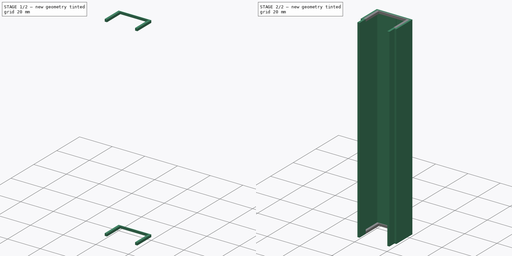
[diagram: build sequence overview — one tinted view per stage of 2, left to right]
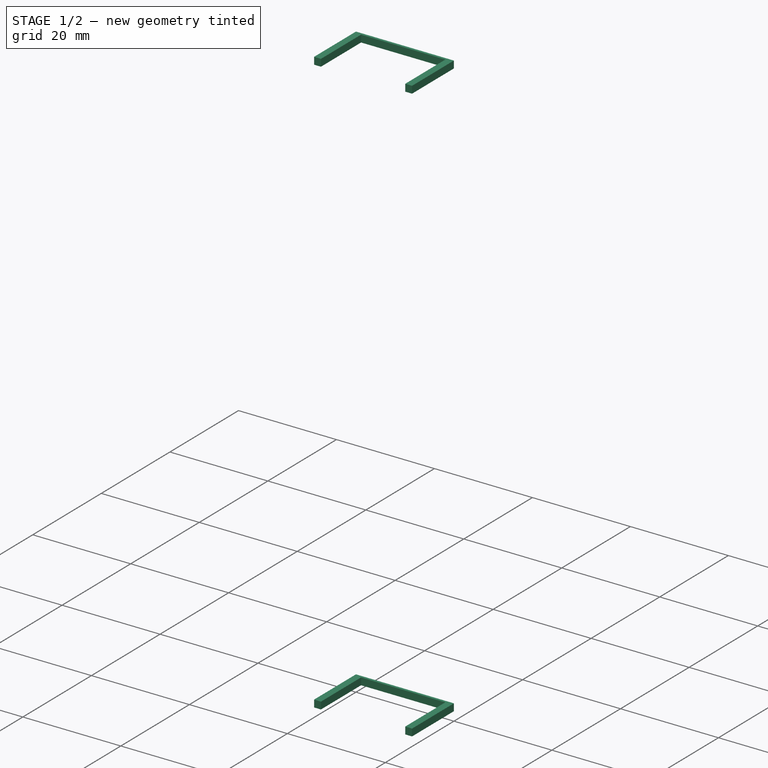
[diagram: stage 1 of 2 — iso view after this stage's code; geometry added in this stage tinted green]
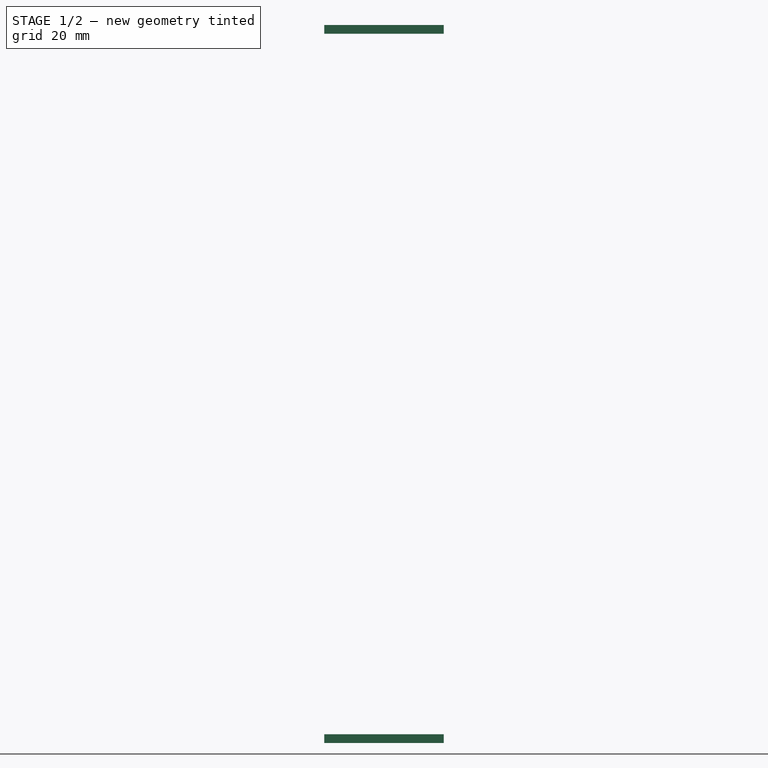
[diagram: stage 1 of 2 — front view after this stage's code; geometry added in this stage tinted green]
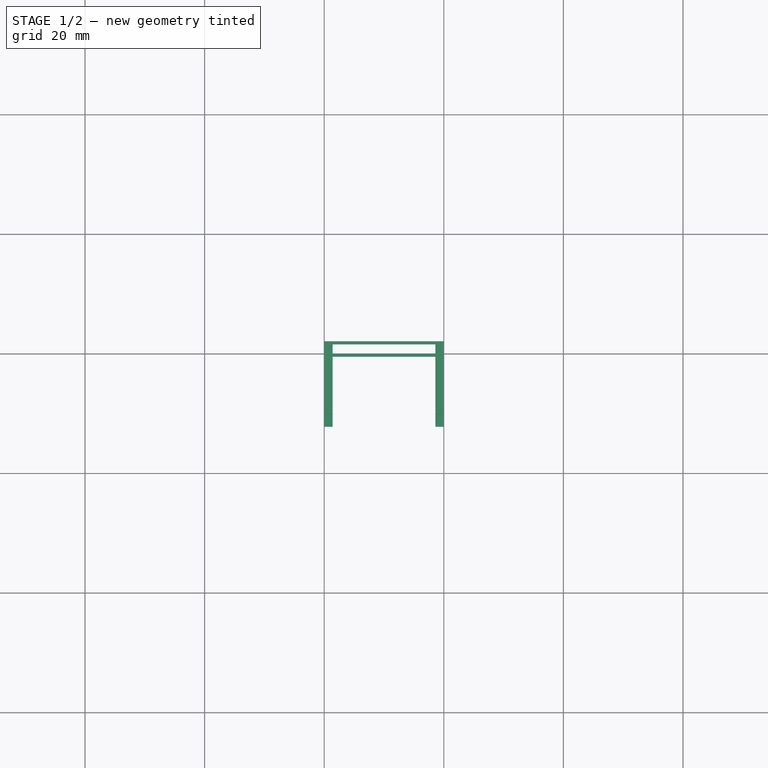
[diagram: stage 1 of 2 — top view after this stage's code; geometry added in this stage tinted green]
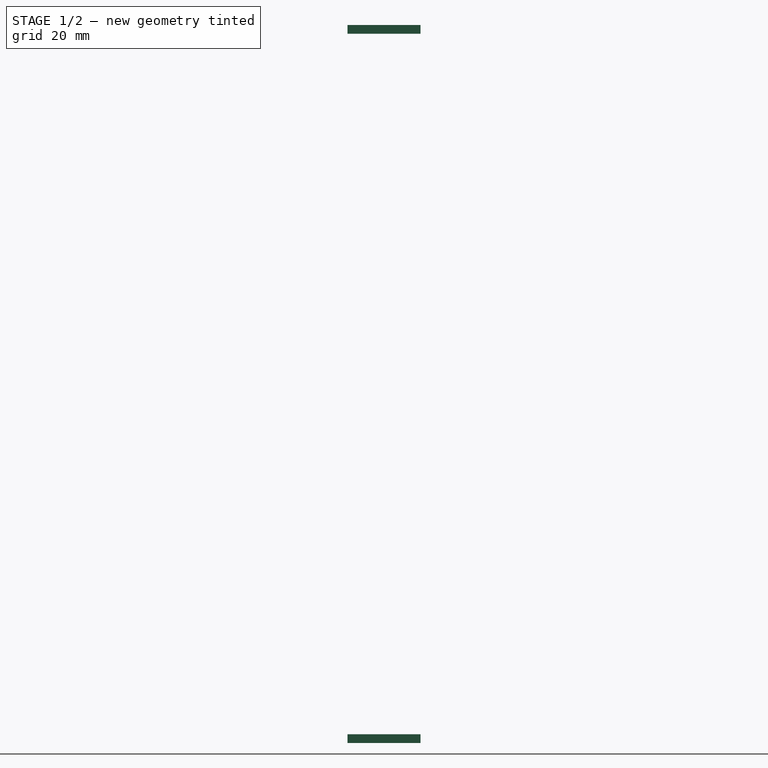
[diagram: stage 1 of 2 — right view after this stage's code; geometry added in this stage tinted green]
FCSTD DOCUMENT  (FreeCAD 0.17R13522 (Git))
Label: BaseLeftSide
License: All rights reserved
LicenseURL: http://en.wikipedia.org/wiki/All_rights_reserved
objects: Sketcher::SketchObject×3, PartDesign::Pad×3, Part::MultiFuse×1
note: 10 computed .brp shape members not serialized (recipe doc carries the construction recipe); baked Part::Feature solids carry a one-line shape summary decoded from their .brp

FEATURE [Sketcher::SketchObject] Sketch001
  MapMode = 5
  Placement = pos=(1.4,-0.5,0) rot=(0,0,1;0rad)
  sketch-geometry (8):
    g0: LineSegment StartX=0 StartY=-11.7 StartZ=0 EndX=-1.4 EndY=-11.7 EndZ=0
    g1: LineSegment StartX=-1.4 StartY=-11.7 StartZ=0 EndX=-1.4 EndY=0.5 EndZ=0
    g2: LineSegment StartX=18.6 StartY=0.5 StartZ=0 EndX=18.6 EndY=-11.7 EndZ=0
    g3: LineSegment StartX=18.6 StartY=-11.7 StartZ=0 EndX=17.2 EndY=-11.7 EndZ=0
    g4: LineSegment StartX=17.2 StartY=-11.7 StartZ=0 EndX=17.2 EndY=0 EndZ=0
    g5: LineSegment StartX=0 StartY=0 StartZ=0 EndX=0 EndY=-11.7 EndZ=0
    g6: LineSegment StartX=0 StartY=0 StartZ=0 EndX=17.2 EndY=0 EndZ=0
    g7: LineSegment StartX=-1.4 StartY=0.5 StartZ=0 EndX=18.6 EndY=0.5 EndZ=0
  constraints (23):
    c: Coincident(g1,g0)
    c: Coincident(g3,g2)
    c: Angle(g2,g3) = 1.5708
    c: Distance(g2) = 12.2
    c: Equal(g1,g2)
    c: Equal(g0,g3)
    c: Angle(g0,g1) = 1.5708
    c: Coincident(g4,g3)
    c: DistanceX(g4,g2) = 1.4
    c: Coincident(g5,g0)
    c: Coincident(g6,g5)
    c: Coincident(g6,g4)
    c: Angle(g6,g4) = 1.5708
    c: Coincident(g7,g1)
    c: Coincident(g7,g2)
    c: Distance(g7) = 20
    c: DistanceY(g4,g2) = 0.5
    c: Angle(g5,g6) = 1.5708
    c: Angle(g1,g7) = 1.5708
    c: Angle(g7,g2) = 1.5708
    c: Equal(g5,g4)
    c: Coincident(g-1,g5)
    c: Parallel(g-2,g5)
FEATURE [PartDesign::Pad] Pad001  label="lower_slide"
  Length = 1.45
  Length2 = 100
  Placement = pos=(1.4,-0.5,0) rot=(0,0,1;0rad)
  Profile = -> Sketch001
  Type = 0
FEATURE [Sketcher::SketchObject] Sketch002
  MapMode = 5
  Placement = pos=(1.4,-0.5,118.6) rot=(0,0,1;0rad)
  sketch-geometry (8):
    g0: LineSegment StartX=0 StartY=-11.7 StartZ=0 EndX=-1.4 EndY=-11.7 EndZ=0
    g1: LineSegment StartX=-1.4 StartY=-11.7 StartZ=0 EndX=-1.4 EndY=0.5 EndZ=0
    g2: LineSegment StartX=18.6 StartY=0.5 StartZ=0 EndX=18.6 EndY=-11.7 EndZ=0
    g3: LineSegment StartX=18.6 StartY=-11.7 StartZ=0 EndX=17.2 EndY=-11.7 EndZ=0
    g4: LineSegment StartX=17.2 StartY=-11.7 StartZ=0 EndX=17.2 EndY=0 EndZ=0
    g5: LineSegment StartX=0 StartY=0 StartZ=0 EndX=0 EndY=-11.7 EndZ=0
    g6: LineSegment StartX=0 StartY=0 StartZ=0 EndX=17.2 EndY=0 EndZ=0
    g7: LineSegment StartX=-1.4 StartY=0.5 StartZ=0 EndX=18.6 EndY=0.5 EndZ=0
  constraints (23):
    c: Coincident(g1,g0)
    c: Coincident(g3,g2)
    c: Angle(g2,g3) = 1.5708
    c: Distance(g2) = 12.2
    c: Equal(g1,g2)
    c: Equal(g0,g3)
    c: Angle(g0,g1) = 1.5708
    c: Coincident(g4,g3)
    c: DistanceX(g4,g2) = 1.4
    c: Coincident(g5,g0)
    c: Coincident(g6,g5)
    c: Coincident(g6,g4)
    c: Angle(g6,g4) = 1.5708
    c: Coincident(g7,g1)
    c: Coincident(g7,g2)
    c: Distance(g7) = 20
    c: DistanceY(g4,g2) = 0.5
    c: Angle(g5,g6) = 1.5708
    c: Angle(g1,g7) = 1.5708
    c: Angle(g7,g2) = 1.5708
    c: Equal(g5,g4)
    c: Coincident(g-1,g5)
    c: Parallel(g-2,g5)
FEATURE [PartDesign::Pad] Pad002  label="upper_slide"
  Length = 1.45
  Length2 = 100
  Placement = pos=(1.4,-0.5,118.6) rot=(0,0,1;0rad)
  Profile = -> Sketch002
  Type = 0
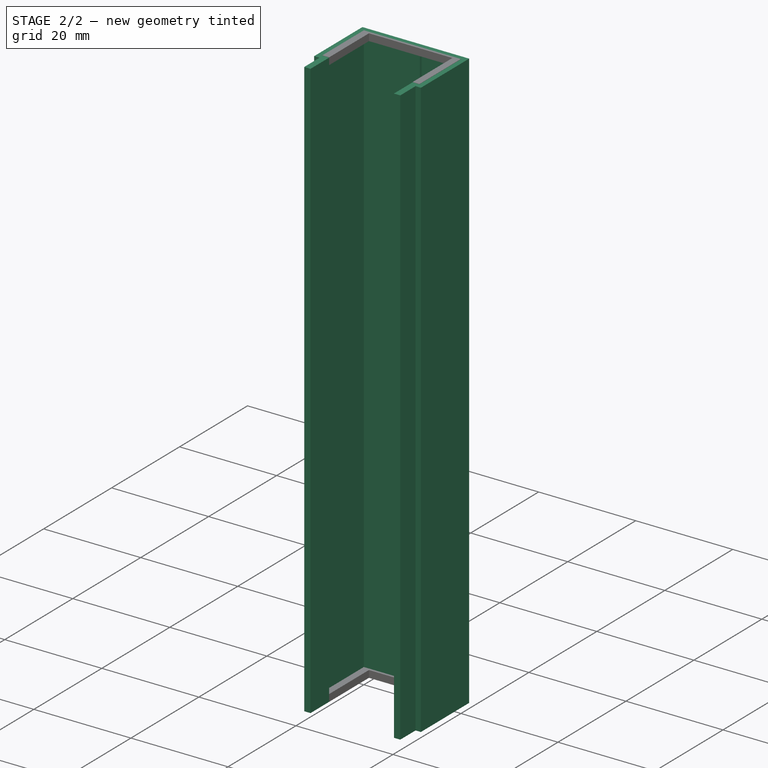
[diagram: stage 2 of 2 — iso view after this stage's code; geometry added in this stage tinted green]
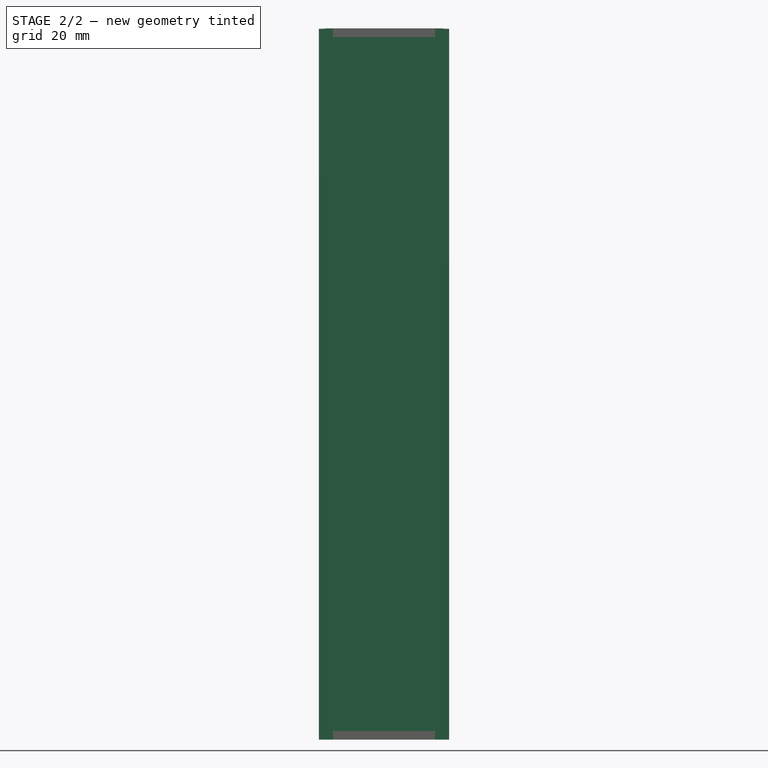
[diagram: stage 2 of 2 — front view after this stage's code; geometry added in this stage tinted green]
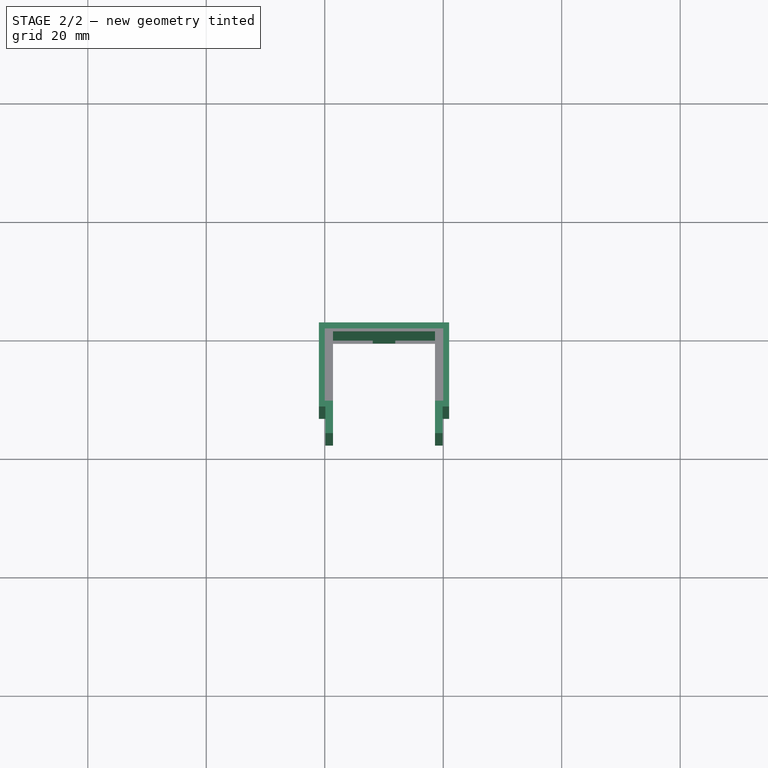
[diagram: stage 2 of 2 — top view after this stage's code; geometry added in this stage tinted green]
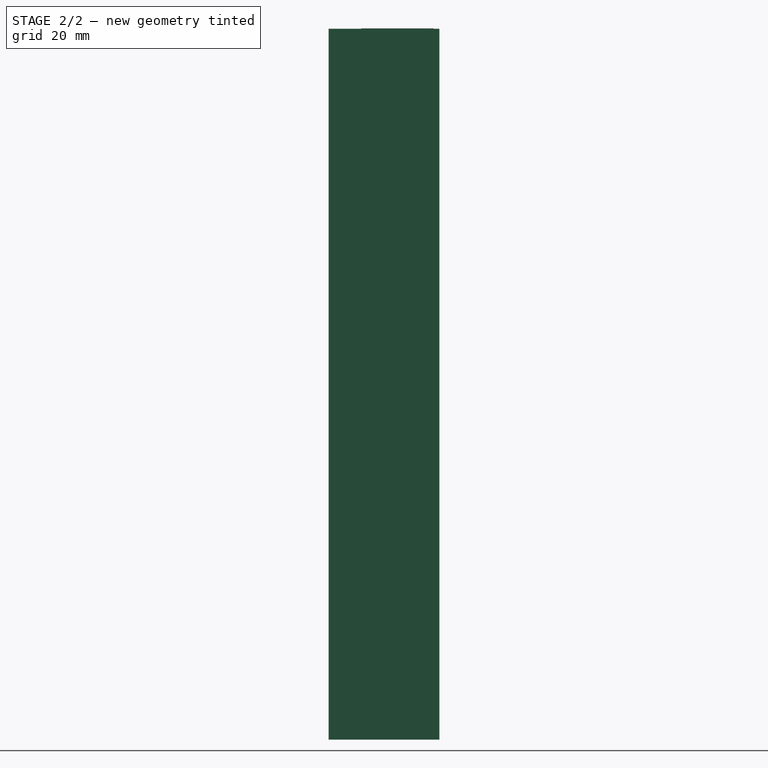
[diagram: stage 2 of 2 — right view after this stage's code; geometry added in this stage tinted green]
FEATURE [Sketcher::SketchObject] Sketch
  MapMode = 5
  sketch-geometry (20):
    g0: LineSegment StartX=-1 StartY=1 StartZ=0 EndX=21 EndY=1 EndZ=0
    g1: LineSegment StartX=21 StartY=1 StartZ=0 EndX=21 EndY=-13.2 EndZ=0
    g2: LineSegment StartX=21 StartY=-13.2 StartZ=0 EndX=19.9 EndY=-13.2 EndZ=0
    g3: LineSegment StartX=19.9 StartY=-13.2 StartZ=0 EndX=19.9 EndY=-17.7 EndZ=0
    g4: LineSegment StartX=-1 StartY=1 StartZ=0 EndX=-1 EndY=-13.2 EndZ=0
    g5: LineSegment StartX=-1 StartY=-13.2 StartZ=0 EndX=0.1 EndY=-13.2 EndZ=0
    g6: LineSegment StartX=0.1 StartY=-13.2 StartZ=0 EndX=0.1 EndY=-17.7 EndZ=0
    g7: LineSegment StartX=1.4 StartY=-17.7 StartZ=0 EndX=1.4 EndY=-12.2 EndZ=0
    g8: LineSegment StartX=1.4 StartY=-12.2 StartZ=0 EndX=-1e-12 EndY=-12.2 EndZ=0
    g9: LineSegment StartX=-1e-12 StartY=-12.2 StartZ=0 EndX=0 EndY=0 EndZ=0
    g10: LineSegment StartX=0 StartY=0 StartZ=0 EndX=8.1 EndY=0 EndZ=0
    g11: LineSegment StartX=8.1 StartY=0 StartZ=0 EndX=8.1 EndY=-0.5 EndZ=0
    g12: LineSegment StartX=8.1 StartY=-0.5 StartZ=0 EndX=11.9 EndY=-0.5 EndZ=0
    g13: LineSegment StartX=11.9 StartY=-0.5 StartZ=0 EndX=11.9 EndY=0 EndZ=0
    g14: LineSegment StartX=20 StartY=2e-12 StartZ=0 EndX=20 EndY=-12.2 EndZ=0
    g15: LineSegment StartX=20 StartY=-12.2 StartZ=0 EndX=18.6 EndY=-12.2 EndZ=0
    g16: LineSegment StartX=18.6 StartY=-12.2 StartZ=0 EndX=18.6 EndY=-17.7 EndZ=0
    g17: LineSegment StartX=18.6 StartY=-17.7 StartZ=0 EndX=19.9 EndY=-17.7 EndZ=0
    g18: LineSegment StartX=11.9 StartY=0 StartZ=0 EndX=20 EndY=2e-12 EndZ=0
    g19: LineSegment StartX=0.1 StartY=-17.7 StartZ=0 EndX=1.4 EndY=-17.7 EndZ=0
  constraints (59):
    c: Horizontal(g0)
    c: Coincident(g1,g0)
    c: Coincident(g2,g1)
    c: Coincident(g3,g2)
    c: Coincident(g4,g0)
    c: Coincident(g5,g4)
    c: Coincident(g6,g5)
    c: Coincident(g8,g7)
    c: Coincident(g9,g8)
    c: Coincident(g10,g9)
    c: Horizontal(g10)
    c: Coincident(g11,g10)
    c: Coincident(g12,g11)
    c: Horizontal(g12)
    c: Coincident(g13,g12)
    c: Vertical(g13)
    c: Coincident(g15,g14)
    c: Coincident(g16,g15)
    c: Coincident(g17,g16)
    c: Coincident(g17,g3)
    c: Coincident(g18,g13)
    c: Coincident(g18,g14)
    c: Coincident(g19,g6)
    c: Coincident(g19,g7)
    c: Angle(g18,g14) = 1.5708
    c: Angle(g14,g15) = 1.5708
    c: Angle(g17,g16) = 1.5708
    c: Angle(g1,g2) = 1.5708
    c: Distance(g0) = 22
    c: Distance(g14) = 12.2
    c: Distance(g18) = 8.1
    c: Distance(g16) = 5.5
    c: Distance(g17) = 1.3
    c: Distance(g12) = 3.8
    c: Distance(g13) = 0.5
    c: Equal(g11,g13)
    c: Equal(g18,g10)
    c: Angle(g12,g11) = 1.5708
    c: Angle(g0,g1) = 1.5708
    c: Angle(g3,g2) = 1.5708
    c: Angle(g16,g15) = 1.5708
    c: Equal(g9,g14)
    c: Equal(g4,g1)
    c: Angle(g3,g17) = 1.5708
    c: Equal(g8,g15)
    c: Equal(g5,g2)
    c: Equal(g7,g16)
    c: Equal(g6,g3)
    c: Equal(g19,g17)
    c: Angle(g9,g10) = 1.5708
    c: Angle(g4,g0) = 1.5708
    c: Angle(g8,g9) = 1.5708
    c: Angle(g5,g4) = 1.5708
    c: Angle(g7,g19) = 1.5708
    c: Angle(g19,g6) = 1.5708
    c: DistanceY(g14,g0) = 1
    c: DistanceY(g2,g14) = 1
    c: Distance(g2) = 1.1
    c: Coincident(g9,g-1)
FEATURE [PartDesign::Pad] Pad  label="Outerform"
  Length = 120
  Length2 = 100
  Profile = -> Sketch
  Type = 0
FEATURE [Part::MultiFuse] Fusion  label="Shell"
  Shapes = -> [Pad,Pad002,Pad001]
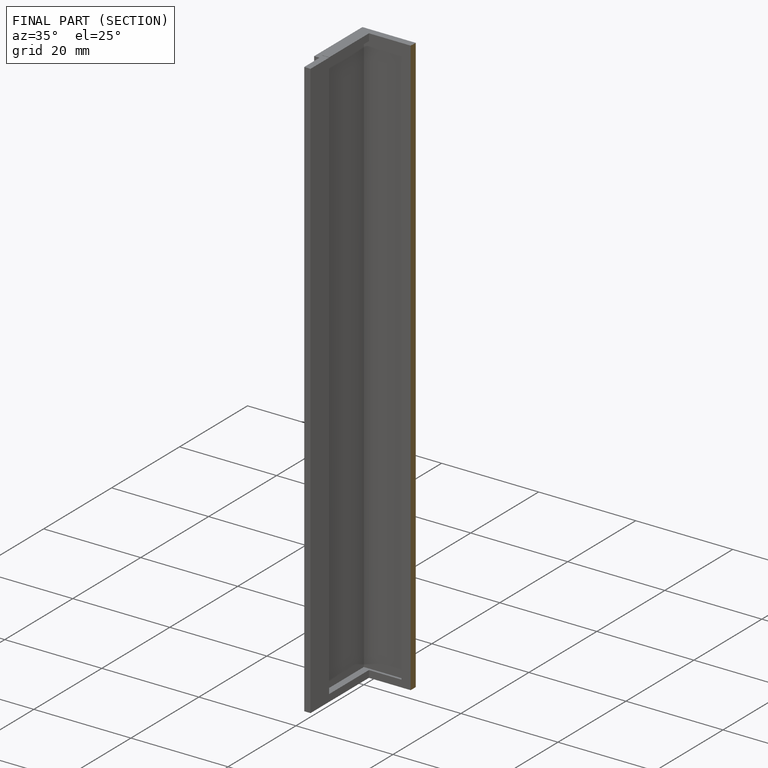
[diagram: finished part — half-section view (interior)]
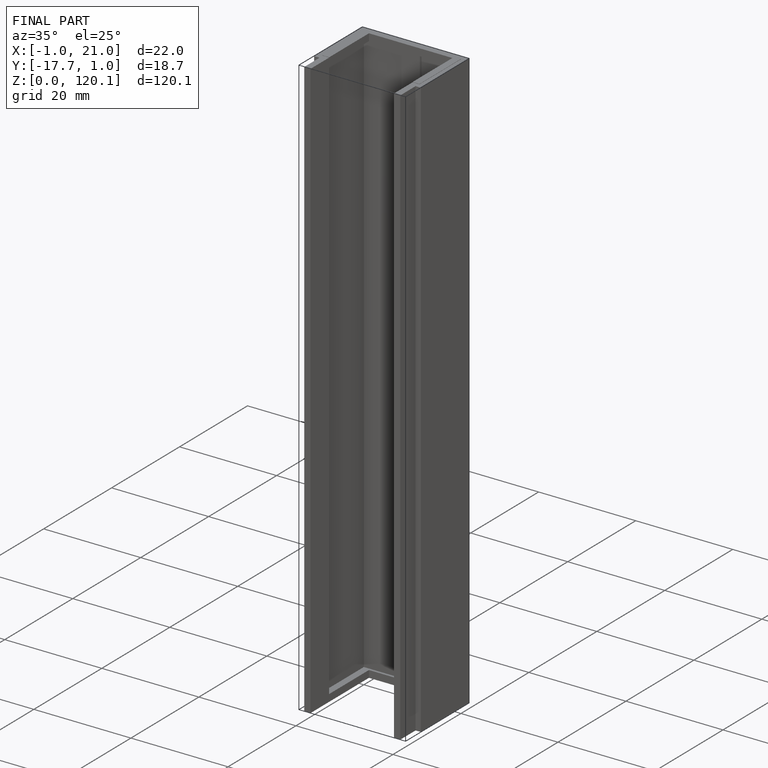
[diagram: finished part — iso view with bounding-box wireframe]
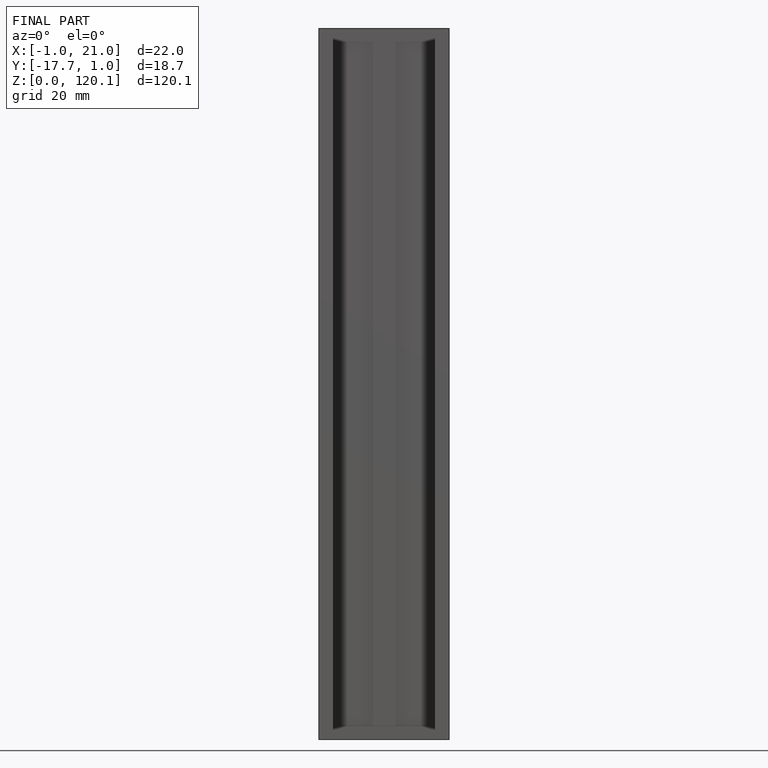
[diagram: finished part — front view with bounding-box wireframe]
